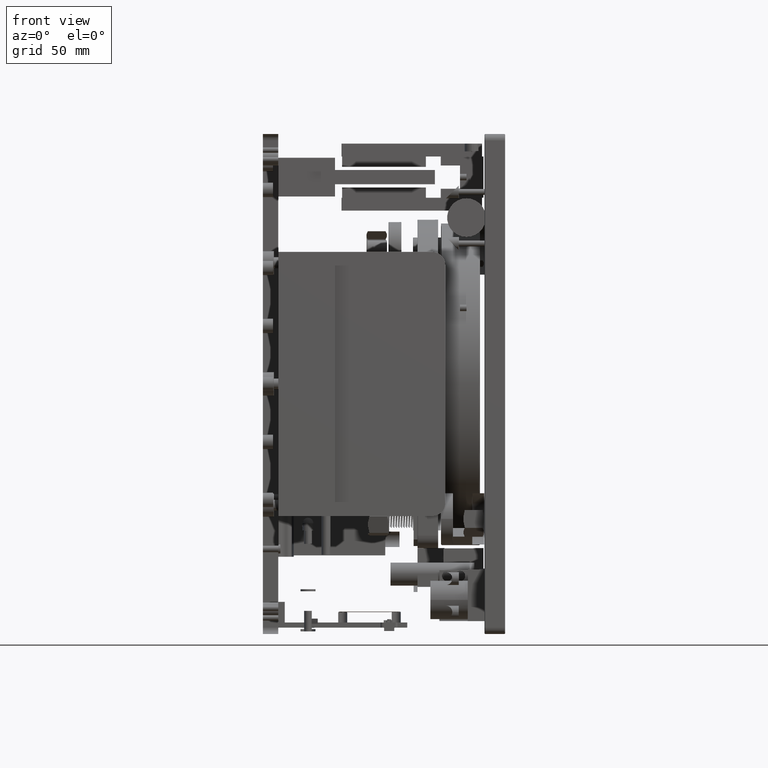
[diagram: clean part render]
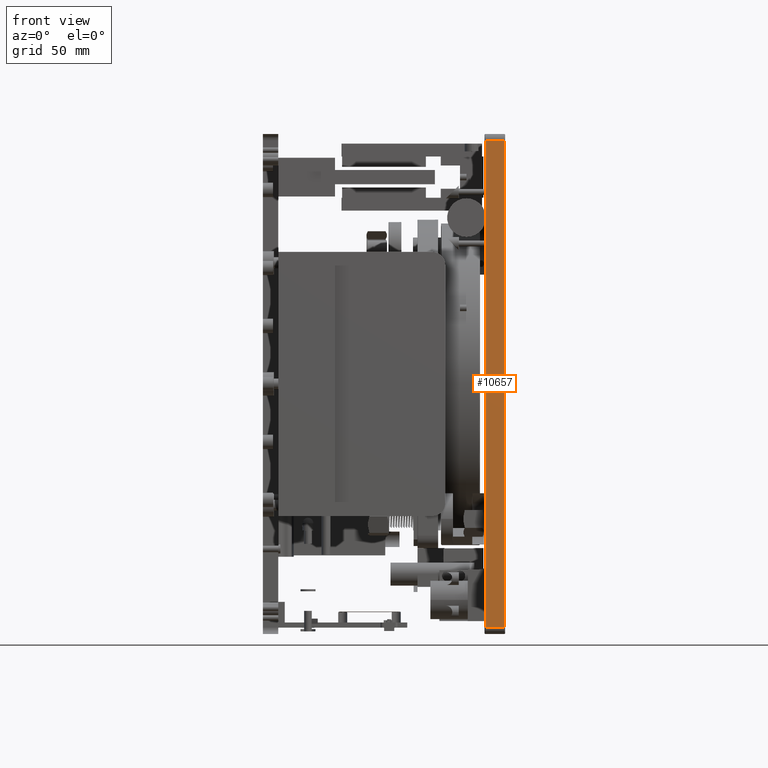
[diagram: same view with one face highlighted and labeled with its STEP entity id]
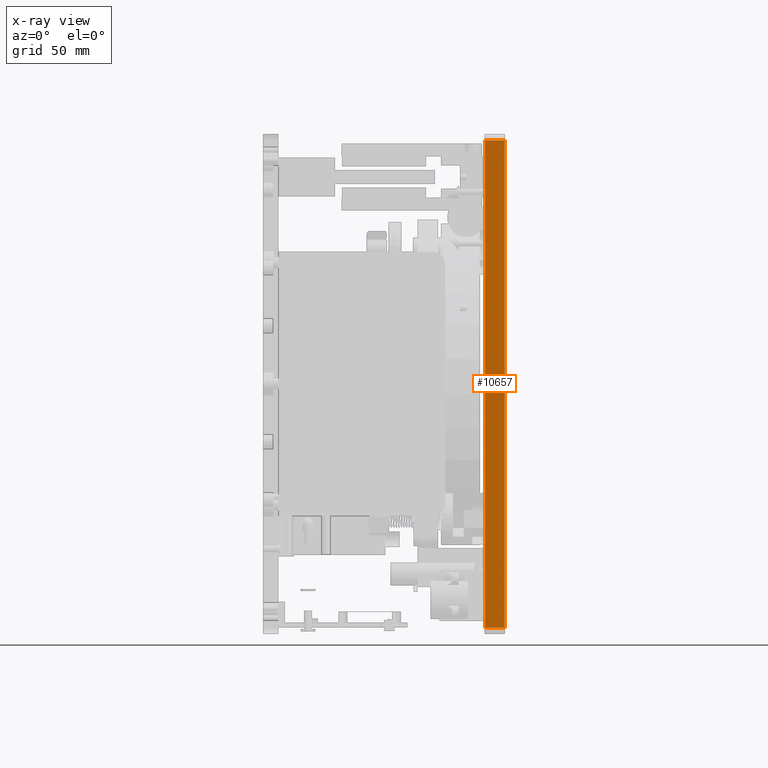
[diagram: x-ray of the same camera — body ghosted, the highlighted face saturated]
A machine part, front view. The second image highlights one B-rep face of the part: STEP entity #10657.
The next image is the same camera in x-ray: the body ghosted, the highlighted face saturated — about 0% of this face is hidden behind the body in this view.
In plain terms, the highlighted planar face has unit normal (-0, -1, 0).
Its self-contained STEP definition (entity closure, byte-faithful):
#1426 = PLANE ( 'NONE',  #33506 ) ;
#1487 = DIRECTION ( 'NONE',  ( -0.000000000000000000, 2.450817326860032432E-14, 1.000000000000000000 ) ) ;
#1895 = CARTESIAN_POINT ( 'NONE',  ( -563.7577050684813003, -194.9889648934896513, 414.0000000000047748 ) ) ;
#4062 = DIRECTION ( 'NONE',  ( -1.225408946310943607E-14, -1.225408946311079606E-14, -1.000000000000000000 ) ) ;
#4926 = FACE_OUTER_BOUND ( 'NONE', #25142, .T. ) ;
#5020 = CARTESIAN_POINT ( 'NONE',  ( -563.7577050684813003, -194.9889648934897650, 409.0000000000047748 ) ) ;
#5688 = VECTOR ( 'NONE', #4062, 1000.000000000000000 ) ;
#6167 = LINE ( 'NONE', #12741, #6862 ) ;
#6792 = VECTOR ( 'NONE', #40133, 1000.000000000000000 ) ;
#6862 = VECTOR ( 'NONE', #37788, 1000.000000000000000 ) ;
#7580 = CARTESIAN_POINT ( 'NONE',  ( -27.80929485513493660, -194.9889648934897650, 414.0000000000047748 ) ) ;
#8709 = EDGE_CURVE ( 'NONE', #40365, #35773, #6167, .T. ) ;
#10657 = ADVANCED_FACE ( 'NONE', ( #4926 ), #1426, .T. ) ;
#12741 = CARTESIAN_POINT ( 'NONE',  ( -563.7577050684813003, -194.9889648934990305, 31.00000000000463629 ) ) ;
#12904 = DIRECTION ( 'NONE',  ( 0.000000000000000000, -2.450817326860032432E-14, -1.000000000000000000 ) ) ;
#13256 = ORIENTED_EDGE ( 'NONE', *, *, #8709, .T. ) ;
#14415 = CARTESIAN_POINT ( 'NONE',  ( -27.80929485512940502, -194.9889648934952788, 31.00000000000463629 ) ) ;
#16140 = VECTOR ( 'NONE', #1487, 1000.000000000000000 ) ;
#17609 = CARTESIAN_POINT ( 'NONE',  ( -27.80929485517526345, -194.9889648934723994, 409.0000000000047748 ) ) ;
#19033 = LINE ( 'NONE', #36361, #16140 ) ;
#23371 = EDGE_CURVE ( 'NONE', #35773, #34783, #19033, .T. ) ;
#23400 = EDGE_CURVE ( 'NONE', #42455, #40365, #26546, .T. ) ;
#25142 = EDGE_LOOP ( 'NONE', ( #13256, #26754, #34390, #30548 ) ) ;
#26546 = LINE ( 'NONE', #7580, #5688 ) ;
#26754 = ORIENTED_EDGE ( 'NONE', *, *, #23371, .T. ) ;
#30457 = DIRECTION ( 'NONE',  ( -1.224610687353160217E-16, -1.000000000000000000, 2.450817326860032432E-14 ) ) ;
#30548 = ORIENTED_EDGE ( 'NONE', *, *, #23400, .T. ) ;
#32553 = CARTESIAN_POINT ( 'NONE',  ( -12.80929485513493660, -194.9889648934990873, 31.00000000000459366 ) ) ;
#33506 = AXIS2_PLACEMENT_3D ( 'NONE', #1895, #30457, #12904 ) ;
#34390 = ORIENTED_EDGE ( 'NONE', *, *, #39260, .F. ) ;
#34783 = VERTEX_POINT ( 'NONE', #41238 ) ;
#35773 = VERTEX_POINT ( 'NONE', #32553 ) ;
#36361 = CARTESIAN_POINT ( 'NONE',  ( -12.80929485513493304, -194.9889648934897082, 414.0000000000047748 ) ) ;
#36852 = LINE ( 'NONE', #5020, #6792 ) ;
#37788 = DIRECTION ( 'NONE',  ( 1.000000000000000000, -1.224610687353160217E-16, 3.001297091223099110E-30 ) ) ;
#39260 = EDGE_CURVE ( 'NONE', #42455, #34783, #36852, .T. ) ;
#40133 = DIRECTION ( 'NONE',  ( 1.000000000000000000, -1.224610687353160217E-16, -5.657618544135665305E-21 ) ) ;
#40365 = VERTEX_POINT ( 'NONE', #14415 ) ;
#41238 = CARTESIAN_POINT ( 'NONE',  ( -12.80929485510204380, -194.9889648934561137, 409.0000000000047180 ) ) ;
#42455 = VERTEX_POINT ( 'NONE', #17609 ) ;